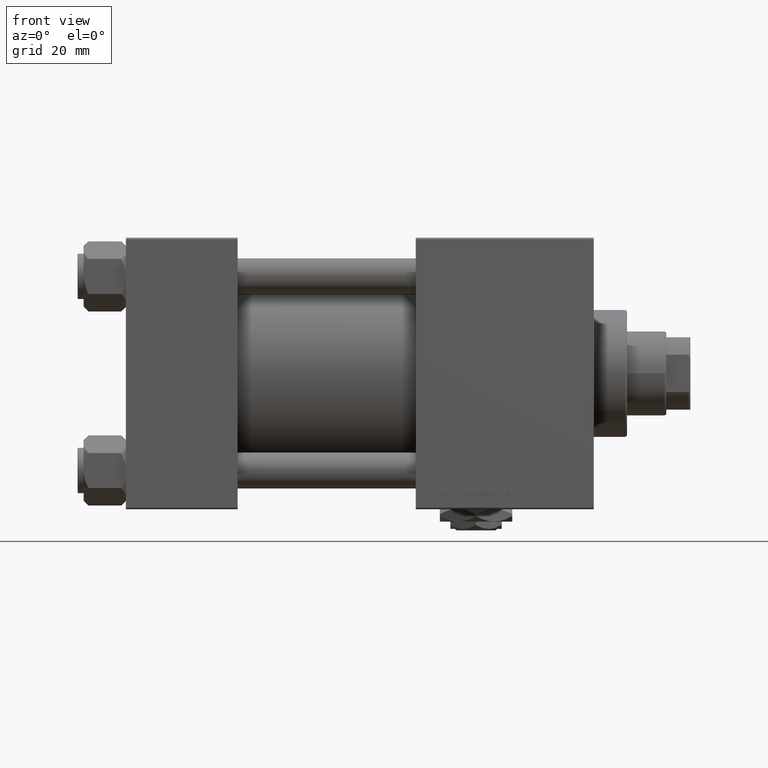
[diagram: clean part render]
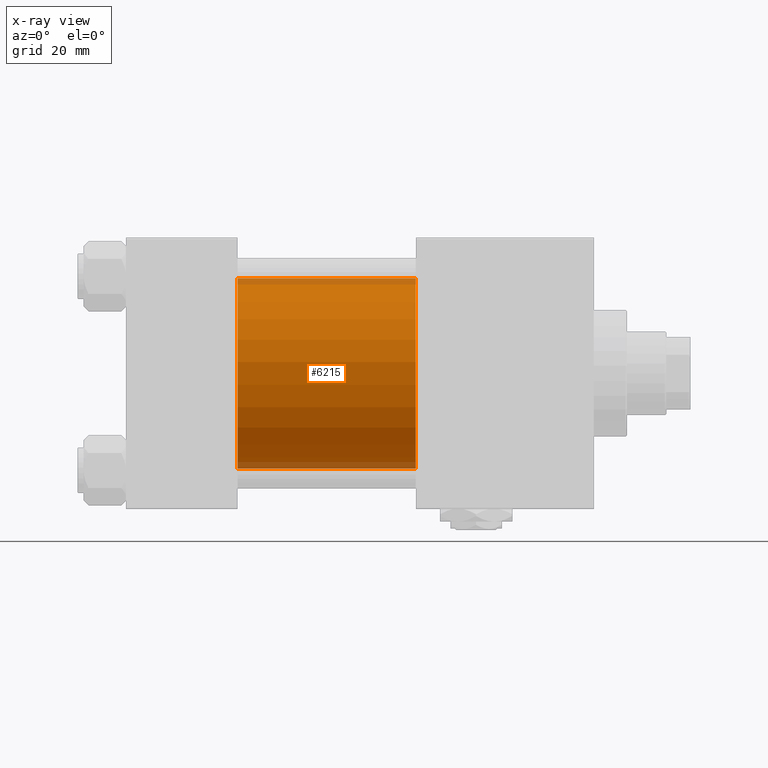
[diagram: x-ray — body ghosted, one internal face saturated and labeled with its STEP entity id]
A machine part, front view, then the same camera in x-ray: the body is ghosted and one INTERNAL B-rep face — a face not visible from any outside direction — is saturated and labeled: STEP entity #6215.
In plain terms, the highlighted cylindrical surface (partial cylindrical patch) has radius 31.5 mm, axis along (-1, -0, -0).
Its self-contained STEP definition (entity closure, byte-faithful):
#1242 = ORIENTED_EDGE ( 'NONE', *, *, #25621, .F. ) ;
#3631 = DIRECTION ( 'NONE',  ( 1.000000000000000000, 0.000000000000000000, 0.000000000000000000 ) ) ;
#4892 = ORIENTED_EDGE ( 'NONE', *, *, #16367, .T. ) ;
#6215 = ADVANCED_FACE ( 'NONE', ( #42557 ), #10777, .F. ) ;
#6989 = CARTESIAN_POINT ( 'NONE',  ( 37.00000000000000000, 1.255552203348951850E-15, -31.50000000000000000 ) ) ;
#8340 = DIRECTION ( 'NONE',  ( -1.000000000000000000, -0.000000000000000000, -0.000000000000000000 ) ) ;
#9115 = DIRECTION ( 'NONE',  ( 1.000000000000000000, 0.000000000000000000, 0.000000000000000000 ) ) ;
#10777 = CYLINDRICAL_SURFACE ( 'NONE', #50583, 31.50000000000000000 ) ;
#11408 = CIRCLE ( 'NONE', #40772, 31.50000000000000000 ) ;
#12546 = CARTESIAN_POINT ( 'NONE',  ( 96.00000000000000000, -2.602085213965210642E-15, 31.50000000000000000 ) ) ;
#14712 = DIRECTION ( 'NONE',  ( -1.000000000000000000, -0.000000000000000000, -0.000000000000000000 ) ) ;
#14834 = EDGE_CURVE ( 'NONE', #14917, #36236, #28570, .T. ) ;
#14917 = VERTEX_POINT ( 'NONE', #26433 ) ;
#16367 = EDGE_CURVE ( 'NONE', #14917, #49433, #11408, .T. ) ;
#17064 = CIRCLE ( 'NONE', #46407, 31.50000000000000000 ) ;
#19176 = DIRECTION ( 'NONE',  ( 0.000000000000000000, 0.000000000000000000, 1.000000000000000000 ) ) ;
#19416 = CARTESIAN_POINT ( 'NONE',  ( 96.00000000000000000, -2.602085213965210642E-15, 0.000000000000000000 ) ) ;
#20596 = VECTOR ( 'NONE', #8340, 1000.000000000000000 ) ;
#20794 = CARTESIAN_POINT ( 'NONE',  ( 96.00000000000000000, 1.255552203348951850E-15, -31.50000000000000000 ) ) ;
#21519 = VECTOR ( 'NONE', #36817, 1000.000000000000000 ) ;
#21949 = VERTEX_POINT ( 'NONE', #6989 ) ;
#22173 = CARTESIAN_POINT ( 'NONE',  ( 37.00000000000000000, -2.602085213965210642E-15, 31.50000000000000000 ) ) ;
#23353 = DIRECTION ( 'NONE',  ( 0.000000000000000000, 0.000000000000000000, -1.000000000000000000 ) ) ;
#25621 = EDGE_CURVE ( 'NONE', #36236, #21949, #17064, .T. ) ;
#26433 = CARTESIAN_POINT ( 'NONE',  ( 96.00000000000000000, -2.602085213965210642E-15, 31.50000000000000000 ) ) ;
#28570 = LINE ( 'NONE', #12546, #20596 ) ;
#30221 = CARTESIAN_POINT ( 'NONE',  ( 96.00000000000000000, -2.602085213965210642E-15, 0.000000000000000000 ) ) ;
#32828 = ORIENTED_EDGE ( 'NONE', *, *, #32852, .T. ) ;
#32852 = EDGE_CURVE ( 'NONE', #49433, #21949, #40223, .T. ) ;
#36236 = VERTEX_POINT ( 'NONE', #22173 ) ;
#36817 = DIRECTION ( 'NONE',  ( -1.000000000000000000, -0.000000000000000000, -0.000000000000000000 ) ) ;
#36955 = CARTESIAN_POINT ( 'NONE',  ( 37.00000000000000000, -2.602085213965210642E-15, 0.000000000000000000 ) ) ;
#39323 = EDGE_LOOP ( 'NONE', ( #4892, #32828, #1242, #43275 ) ) ;
#39832 = CARTESIAN_POINT ( 'NONE',  ( 96.00000000000000000, 1.255552203348951850E-15, -31.50000000000000000 ) ) ;
#40223 = LINE ( 'NONE', #20794, #21519 ) ;
#40772 = AXIS2_PLACEMENT_3D ( 'NONE', #19416, #3631, #23353 ) ;
#40892 = DIRECTION ( 'NONE',  ( 0.000000000000000000, 0.000000000000000000, -1.000000000000000000 ) ) ;
#42557 = FACE_OUTER_BOUND ( 'NONE', #39323, .T. ) ;
#43275 = ORIENTED_EDGE ( 'NONE', *, *, #14834, .F. ) ;
#46407 = AXIS2_PLACEMENT_3D ( 'NONE', #36955, #9115, #40892 ) ;
#49433 = VERTEX_POINT ( 'NONE', #39832 ) ;
#50583 = AXIS2_PLACEMENT_3D ( 'NONE', #30221, #14712, #19176 ) ;